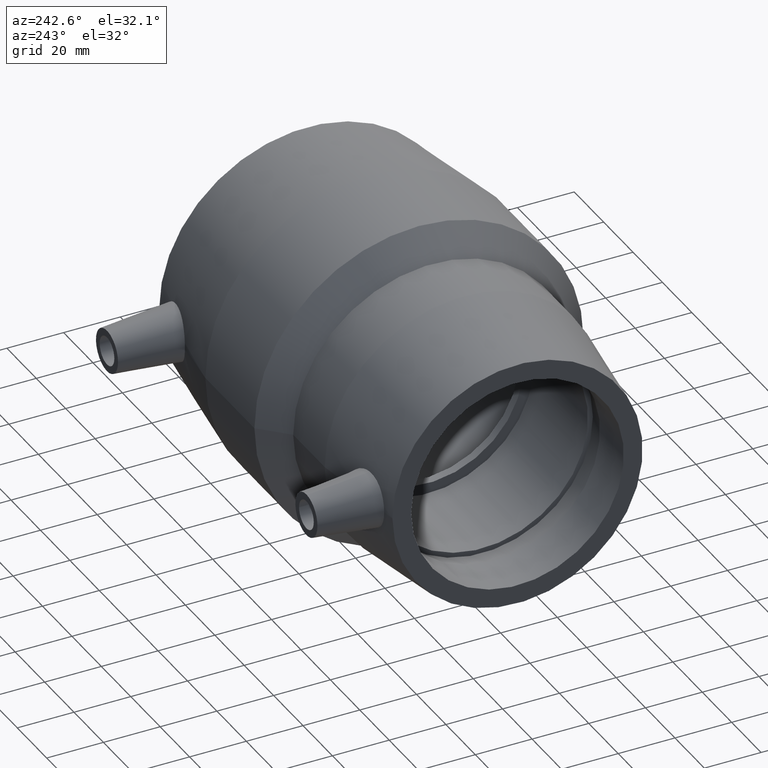
[diagram: clean part render]
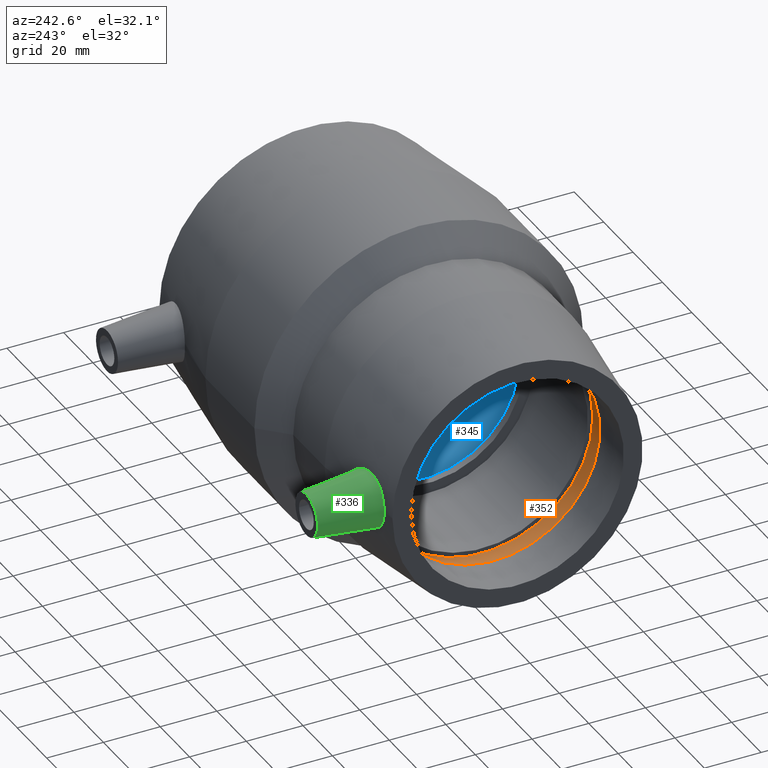
[diagram: same view with three faces highlighted in distinct colors, each labeled with its STEP entity id]
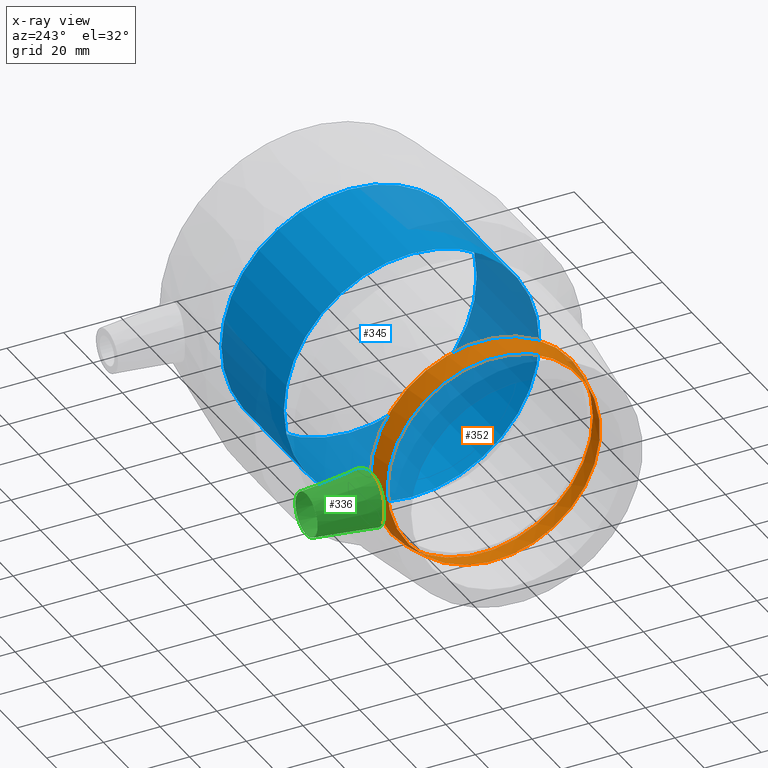
[diagram: x-ray of the same camera — body ghosted, the three highlighted faces saturated]
A machine part, auxiliary view with three faces highlighted in distinct colors.
The next image is the same camera in x-ray (body ghosted, the three faces saturated) — at least one of them is partly hidden behind the body in this view.
Their STEP definitions:

[orange] entity #352 — the highlighted conical surface has half-angle 12 deg.
#23=CONICAL_SURFACE('',#411,38.3643966841247,12.);
#51=FACE_BOUND('',#152,.T.);
#94=FACE_OUTER_BOUND('',#151,.T.);
#151=EDGE_LOOP('',(#304));
#152=EDGE_LOOP('',(#305));
#185=CIRCLE('',#410,39.2287933682495);
#186=CIRCLE('',#412,37.5);
#216=VERTEX_POINT('',#688);
#217=VERTEX_POINT('',#691);
#247=EDGE_CURVE('',#216,#216,#185,.T.);
#248=EDGE_CURVE('',#217,#217,#186,.T.);
#304=ORIENTED_EDGE('',*,*,#248,.F.);
#305=ORIENTED_EDGE('',*,*,#247,.T.);
#352=ADVANCED_FACE('',(#94,#51),#23,.F.);
#410=AXIS2_PLACEMENT_3D('',#689,#524,#525);
#411=AXIS2_PLACEMENT_3D('',#690,#526,#527);
#412=AXIS2_PLACEMENT_3D('',#692,#528,#529);
#524=DIRECTION('center_axis',(1.,1.83697019872103E-16,0.));
#525=DIRECTION('ref_axis',(0.,0.,-1.));
#526=DIRECTION('center_axis',(1.,1.83697019872103E-16,0.));
#527=DIRECTION('ref_axis',(-1.92128802164197E-16,1.,0.));
#528=DIRECTION('center_axis',(1.,1.83697019872103E-16,0.));
#529=DIRECTION('ref_axis',(0.,0.,-1.));
#688=CARTESIAN_POINT('',(-47.1,39.2287933682495,0.));
#689=CARTESIAN_POINT('Origin',(-47.1,4.48220728487932E-15,0.));
#690=CARTESIAN_POINT('Origin',(-51.1666666666666,3.73517273739943E-15,0.));
#691=CARTESIAN_POINT('',(-55.2333333333333,37.5,0.));
#692=CARTESIAN_POINT('Origin',(-55.2333333333333,2.98813818991955E-15,0.));

[blue] entity #345 — the highlighted cylindrical surface (bore or boss wall) has radius 45 mm, axis along (1, 0, 0).
#44=FACE_BOUND('',#138,.T.);
#63=CYLINDRICAL_SURFACE('',#397,45.);
#87=FACE_OUTER_BOUND('',#137,.T.);
#137=EDGE_LOOP('',(#290));
#138=EDGE_LOOP('',(#291));
#178=CIRCLE('',#396,45.);
#179=CIRCLE('',#398,45.);
#209=VERTEX_POINT('',#667);
#210=VERTEX_POINT('',#670);
#240=EDGE_CURVE('',#209,#209,#178,.T.);
#241=EDGE_CURVE('',#210,#210,#179,.T.);
#290=ORIENTED_EDGE('',*,*,#241,.F.);
#291=ORIENTED_EDGE('',*,*,#240,.T.);
#345=ADVANCED_FACE('',(#87,#44),#63,.F.);
#396=AXIS2_PLACEMENT_3D('',#668,#496,#497);
#397=AXIS2_PLACEMENT_3D('',#669,#498,#499);
#398=AXIS2_PLACEMENT_3D('',#671,#500,#501);
#496=DIRECTION('center_axis',(1.,1.83697019872103E-16,0.));
#497=DIRECTION('ref_axis',(0.,0.,-1.));
#498=DIRECTION('center_axis',(1.,1.83697019872103E-16,0.));
#499=DIRECTION('ref_axis',(-1.92128802164197E-16,1.,0.));
#500=DIRECTION('center_axis',(1.,1.83697019872103E-16,0.));
#501=DIRECTION('ref_axis',(0.,0.,-1.));
#667=CARTESIAN_POINT('',(43.1,45.,0.));
#668=CARTESIAN_POINT('Origin',(43.1,2.1051678477343E-14,0.));
#669=CARTESIAN_POINT('Origin',(21.8,1.71389319540672E-14,0.));
#670=CARTESIAN_POINT('',(0.49999999999998,45.,0.));
#671=CARTESIAN_POINT('Origin',(0.499999999999989,1.32261854307914E-14,0.));

[green] entity #336 — the highlighted conical surface has half-angle 6 deg.
#16=B_SPLINE_CURVE_WITH_KNOTS('',3,(#609,#610,#611,#612,#613,#614,#615,
#616,#617,#618,#619,#620,#621,#622,#623,#624,#625,#626,#627,#628,#629,#630,
#631,#632,#633,#634,#635,#636,#637,#638,#639,#640,#641,#642),
 .UNSPECIFIED.,.T.,.F.,(4,2,2,2,2,2,2,2,2,2,2,2,2,2,2,2,4),(0.,0.360300405503558,
0.720600811007117,1.08300876601159,1.44541672101606,1.80782467602053,2.170232631025,
2.53053303652856,2.89083344203212,3.27541795027815,3.66000245852417,4.03523672813926,
4.41047099775434,4.78570526736942,5.16093953698451,5.54552404523053,5.93010855347656),
 .UNSPECIFIED.);
#18=CONICAL_SURFACE('',#379,7.5,6.);
#34=FACE_BOUND('',#119,.T.);
#78=FACE_OUTER_BOUND('',#118,.T.);
#118=EDGE_LOOP('',(#271));
#119=EDGE_LOOP('',(#272));
#169=CIRCLE('',#378,7.5);
#199=VERTEX_POINT('',#605);
#200=VERTEX_POINT('',#608);
#230=EDGE_CURVE('',#199,#199,#169,.T.);
#231=EDGE_CURVE('',#200,#200,#16,.T.);
#271=ORIENTED_EDGE('',*,*,#230,.T.);
#272=ORIENTED_EDGE('',*,*,#231,.F.);
#336=ADVANCED_FACE('',(#78,#34),#18,.T.);
#378=AXIS2_PLACEMENT_3D('',#606,#460,#461);
#379=AXIS2_PLACEMENT_3D('',#607,#462,#463);
#460=DIRECTION('center_axis',(0.,-1.,0.));
#461=DIRECTION('ref_axis',(1.,0.,0.));
#462=DIRECTION('center_axis',(0.,-1.,0.));
#463=DIRECTION('ref_axis',(1.,0.,0.));
#605=CARTESIAN_POINT('',(-64.7,67.,9.18485099360515E-16));
#606=CARTESIAN_POINT('Origin',(-57.2,67.,0.));
#607=CARTESIAN_POINT('Origin',(-57.2,67.,0.));
#608=CARTESIAN_POINT('',(-57.6156094384785,44.8987480190627,9.81413900959991));
#609=CARTESIAN_POINT('Ctrl Pts',(-57.6156094384785,44.8987480190628,9.81413900959991));
#610=CARTESIAN_POINT('Ctrl Pts',(-58.8059900995772,44.7430561122388,9.78010728079554));
#611=CARTESIAN_POINT('Ctrl Pts',(-60.0753215826372,44.6307163279427,9.50785071699448));
#612=CARTESIAN_POINT('Ctrl Pts',(-62.4037557121803,44.5211681461434,8.47434986521436));
#613=CARTESIAN_POINT('Ctrl Pts',(-63.4627178246,44.5209927374703,7.71310558893914));
#614=CARTESIAN_POINT('Ctrl Pts',(-65.1323298398048,44.5617439900381,5.97697474000139));
#615=CARTESIAN_POINT('Ctrl Pts',(-65.8545457981718,44.6051161956746,4.88323410447415));
#616=CARTESIAN_POINT('Ctrl Pts',(-66.8104549559409,44.673860066716,2.49879042798759));
#617=CARTESIAN_POINT('Ctrl Pts',(-67.0441877742305,44.696543166838,1.20802651668157));
#618=CARTESIAN_POINT('Ctrl Pts',(-67.0441877742305,44.696543166838,-1.20802651668157));
#619=CARTESIAN_POINT('Ctrl Pts',(-66.8104549559409,44.673860066716,-2.49879042798758));
#620=CARTESIAN_POINT('Ctrl Pts',(-65.8545457981717,44.6051161956746,-4.88323410447414));
#621=CARTESIAN_POINT('Ctrl Pts',(-65.1323298398048,44.5617439900381,-5.97697474000139));
#622=CARTESIAN_POINT('Ctrl Pts',(-63.4627178246,44.5209927374703,-7.71310558893914));
#623=CARTESIAN_POINT('Ctrl Pts',(-62.4037557121803,44.5211681461434,-8.47434986521436));
#624=CARTESIAN_POINT('Ctrl Pts',(-60.0753215826372,44.6307163279427,-9.50785071699448));
#625=CARTESIAN_POINT('Ctrl Pts',(-58.8059900995772,44.7430561122388,-9.78010728079554));
#626=CARTESIAN_POINT('Ctrl Pts',(-56.3449975985212,45.0649334979276,-9.85046446326876));
#627=CARTESIAN_POINT('Ctrl Pts',(-54.9968502258111,45.3020530765737,-9.62177538046222));
#628=CARTESIAN_POINT('Ctrl Pts',(-52.5244997245248,45.8382799061031,-8.6297660445622));
#629=CARTESIAN_POINT('Ctrl Pts',(-51.3994193691279,46.1341070038034,-7.86686194839682));
#630=CARTESIAN_POINT('Ctrl Pts',(-49.6441464624523,46.6358405070025,-6.11129992529047));
#631=CARTESIAN_POINT('Ctrl Pts',(-48.8878733280634,46.8763695706006,-5.00880275543822));
#632=CARTESIAN_POINT('Ctrl Pts',(-47.8800857135029,47.2077017289924,-2.57881523711797));
#633=CARTESIAN_POINT('Ctrl Pts',(-47.6290096439298,47.2958429711679,-1.25078089871695));
#634=CARTESIAN_POINT('Ctrl Pts',(-47.6290096439298,47.2958429711679,1.25078089871694));
#635=CARTESIAN_POINT('Ctrl Pts',(-47.8800857135029,47.2077017289924,2.57881523711796));
#636=CARTESIAN_POINT('Ctrl Pts',(-48.8878733280634,46.8763695706006,5.00880275543821));
#637=CARTESIAN_POINT('Ctrl Pts',(-49.6441464624523,46.6358405070024,6.11129992529047));
#638=CARTESIAN_POINT('Ctrl Pts',(-51.3994193691279,46.1341070038034,7.86686194839681));
#639=CARTESIAN_POINT('Ctrl Pts',(-52.5244997245248,45.8382799061031,8.62976604456219));
#640=CARTESIAN_POINT('Ctrl Pts',(-54.9968502258111,45.3020530765737,9.62177538046222));
#641=CARTESIAN_POINT('Ctrl Pts',(-56.3449975985212,45.0649334979276,9.85046446326876));
#642=CARTESIAN_POINT('Ctrl Pts',(-57.6156094384785,44.8987480190628,9.81413900959991));